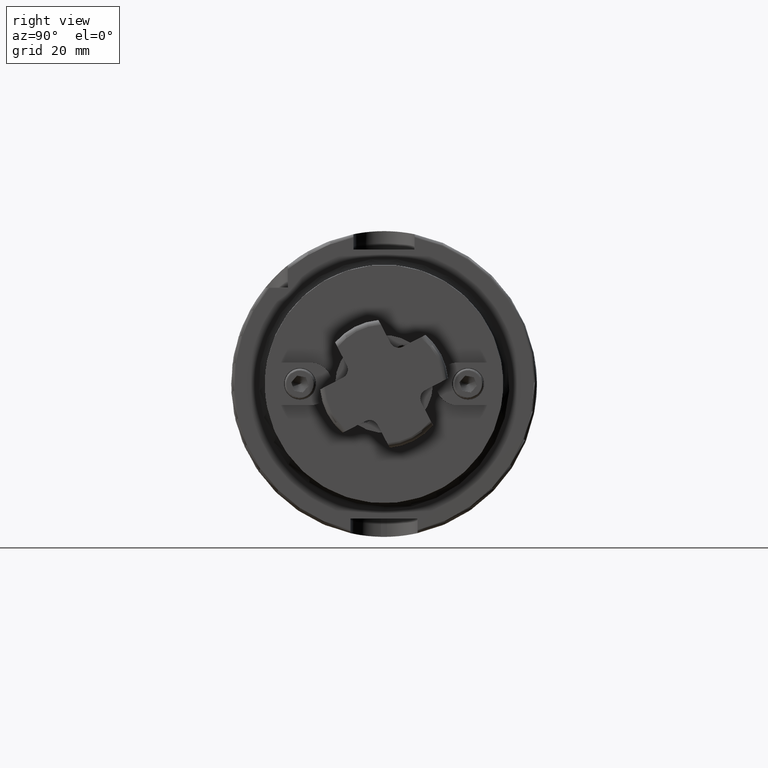
[diagram: clean part render]
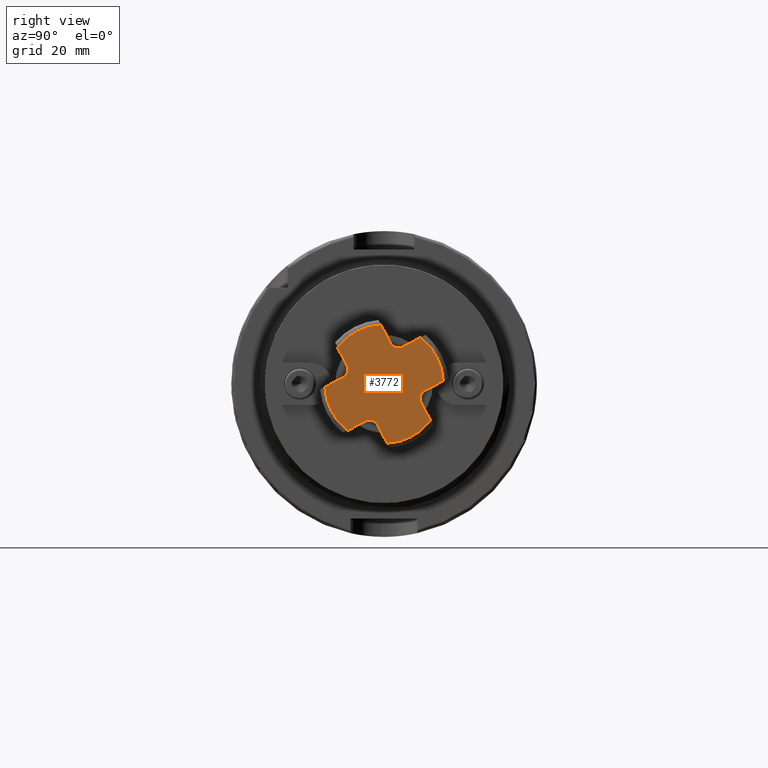
[diagram: same view with one face highlighted and labeled with its STEP entity id]
A machine part, right view. The second image highlights one B-rep face of the part: STEP entity #3772.
In plain terms, the highlighted planar face has unit normal (1, -0, 0).
Its self-contained STEP definition (entity closure, byte-faithful):
#786=PLANE('',#4361);
#1026=FACE_OUTER_BOUND('',#1232,.T.);
#1232=EDGE_LOOP('',(#3551,#3552,#3553,#3554,#3555,#3556,#3557,#3558,#3559,
#3560,#3561,#3562,#3563,#3564,#3565,#3566));
#1395=LINE('',#7669,#1587);
#1400=LINE('',#7708,#1592);
#1405=LINE('',#7747,#1597);
#1410=LINE('',#7786,#1602);
#1418=LINE('',#7810,#1610);
#1420=LINE('',#7816,#1612);
#1422=LINE('',#7822,#1614);
#1424=LINE('',#7828,#1616);
#1587=VECTOR('',#5345,10.);
#1592=VECTOR('',#5362,10.);
#1597=VECTOR('',#5379,10.);
#1602=VECTOR('',#5396,10.);
#1610=VECTOR('',#5422,10.);
#1612=VECTOR('',#5430,10.);
#1614=VECTOR('',#5438,10.);
#1616=VECTOR('',#5446,10.);
#1813=CIRCLE('',#4318,19.4);
#1816=CIRCLE('',#4324,19.4);
#1819=CIRCLE('',#4330,19.4);
#1822=CIRCLE('',#4336,19.4);
#1831=CIRCLE('',#4351,3.);
#1832=CIRCLE('',#4354,3.);
#1833=CIRCLE('',#4357,3.);
#1834=CIRCLE('',#4360,3.);
#2114=VERTEX_POINT('',#7636);
#2115=VERTEX_POINT('',#7647);
#2119=VERTEX_POINT('',#7668);
#2122=VERTEX_POINT('',#7675);
#2123=VERTEX_POINT('',#7686);
#2127=VERTEX_POINT('',#7707);
#2130=VERTEX_POINT('',#7714);
#2131=VERTEX_POINT('',#7725);
#2135=VERTEX_POINT('',#7746);
#2138=VERTEX_POINT('',#7753);
#2139=VERTEX_POINT('',#7764);
#2143=VERTEX_POINT('',#7785);
#2150=VERTEX_POINT('',#7808);
#2151=VERTEX_POINT('',#7814);
#2152=VERTEX_POINT('',#7820);
#2153=VERTEX_POINT('',#7826);
#2564=EDGE_CURVE('',#2114,#2115,#1813,.T.);
#2570=EDGE_CURVE('',#2119,#2115,#1395,.T.);
#2574=EDGE_CURVE('',#2122,#2123,#1816,.T.);
#2580=EDGE_CURVE('',#2127,#2123,#1400,.T.);
#2584=EDGE_CURVE('',#2130,#2131,#1819,.T.);
#2590=EDGE_CURVE('',#2135,#2131,#1405,.T.);
#2594=EDGE_CURVE('',#2138,#2139,#1822,.T.);
#2600=EDGE_CURVE('',#2143,#2139,#1410,.T.);
#2614=EDGE_CURVE('',#2114,#2150,#1418,.T.);
#2615=EDGE_CURVE('',#2150,#2127,#1831,.T.);
#2617=EDGE_CURVE('',#2122,#2151,#1420,.T.);
#2618=EDGE_CURVE('',#2151,#2135,#1832,.T.);
#2620=EDGE_CURVE('',#2130,#2152,#1422,.T.);
#2621=EDGE_CURVE('',#2152,#2143,#1833,.T.);
#2623=EDGE_CURVE('',#2138,#2153,#1424,.T.);
#2624=EDGE_CURVE('',#2153,#2119,#1834,.T.);
#3551=ORIENTED_EDGE('',*,*,#2564,.F.);
#3552=ORIENTED_EDGE('',*,*,#2614,.T.);
#3553=ORIENTED_EDGE('',*,*,#2615,.T.);
#3554=ORIENTED_EDGE('',*,*,#2580,.T.);
#3555=ORIENTED_EDGE('',*,*,#2574,.F.);
#3556=ORIENTED_EDGE('',*,*,#2617,.T.);
#3557=ORIENTED_EDGE('',*,*,#2618,.T.);
#3558=ORIENTED_EDGE('',*,*,#2590,.T.);
#3559=ORIENTED_EDGE('',*,*,#2584,.F.);
#3560=ORIENTED_EDGE('',*,*,#2620,.T.);
#3561=ORIENTED_EDGE('',*,*,#2621,.T.);
#3562=ORIENTED_EDGE('',*,*,#2600,.T.);
#3563=ORIENTED_EDGE('',*,*,#2594,.F.);
#3564=ORIENTED_EDGE('',*,*,#2623,.T.);
#3565=ORIENTED_EDGE('',*,*,#2624,.T.);
#3566=ORIENTED_EDGE('',*,*,#2570,.T.);
#3772=ADVANCED_FACE('',(#1026),#786,.T.);
#4318=AXIS2_PLACEMENT_3D('',#7648,#5333,#5334);
#4324=AXIS2_PLACEMENT_3D('',#7687,#5350,#5351);
#4330=AXIS2_PLACEMENT_3D('',#7726,#5367,#5368);
#4336=AXIS2_PLACEMENT_3D('',#7765,#5384,#5385);
#4351=AXIS2_PLACEMENT_3D('',#7812,#5425,#5426);
#4354=AXIS2_PLACEMENT_3D('',#7818,#5433,#5434);
#4357=AXIS2_PLACEMENT_3D('',#7824,#5441,#5442);
#4360=AXIS2_PLACEMENT_3D('',#7830,#5449,#5450);
#4361=AXIS2_PLACEMENT_3D('',#7831,#5451,#5452);
#5333=DIRECTION('center_axis',(0.,0.,-1.));
#5334=DIRECTION('ref_axis',(-1.,-1.05735526154777E-16,0.));
#5345=DIRECTION('',(-1.,-2.63820977554927E-16,0.));
#5350=DIRECTION('center_axis',(0.,0.,-1.));
#5351=DIRECTION('ref_axis',(5.28677630773884E-17,-1.,0.));
#5362=DIRECTION('',(1.31910488777464E-16,-1.,0.));
#5367=DIRECTION('center_axis',(0.,0.,-1.));
#5368=DIRECTION('ref_axis',(1.,-1.05735526154777E-16,0.));
#5379=DIRECTION('',(1.,-1.31910488777464E-16,0.));
#5384=DIRECTION('center_axis',(0.,0.,-1.));
#5385=DIRECTION('ref_axis',(0.,1.,0.));
#5396=DIRECTION('',(2.63820977554927E-16,1.,0.));
#5422=DIRECTION('',(1.,1.31910488777464E-16,0.));
#5425=DIRECTION('center_axis',(0.,0.,-1.));
#5426=DIRECTION('ref_axis',(-1.,0.,0.));
#5430=DIRECTION('',(1.31910488777464E-16,1.,0.));
#5433=DIRECTION('center_axis',(0.,0.,-1.));
#5434=DIRECTION('ref_axis',(0.,-1.,0.));
#5438=DIRECTION('',(-1.,2.63820977554927E-16,0.));
#5441=DIRECTION('center_axis',(0.,0.,-1.));
#5442=DIRECTION('ref_axis',(1.,0.,0.));
#5446=DIRECTION('',(2.63820977554927E-16,-1.,0.));
#5449=DIRECTION('center_axis',(0.,0.,-1.));
#5450=DIRECTION('ref_axis',(0.,1.,0.));
#5451=DIRECTION('center_axis',(0.,0.,1.));
#5452=DIRECTION('ref_axis',(1.,0.,0.));
#7636=CARTESIAN_POINT('',(-17.6737092880923,-8.,0.));
#7647=CARTESIAN_POINT('',(-17.6737092880923,8.,0.));
#7648=CARTESIAN_POINT('Origin',(0.,0.,0.));
#7668=CARTESIAN_POINT('',(-11.,8.,0.));
#7669=CARTESIAN_POINT('',(-11.,8.,0.));
#7675=CARTESIAN_POINT('',(8.,-17.6737092880923,0.));
#7686=CARTESIAN_POINT('',(-8.,-17.6737092880923,0.));
#7687=CARTESIAN_POINT('Origin',(0.,0.,0.));
#7707=CARTESIAN_POINT('',(-8.,-11.,0.));
#7708=CARTESIAN_POINT('',(-8.,-11.,0.));
#7714=CARTESIAN_POINT('',(17.6737092880923,8.,0.));
#7725=CARTESIAN_POINT('',(17.6737092880923,-8.,0.));
#7726=CARTESIAN_POINT('Origin',(0.,0.,0.));
#7746=CARTESIAN_POINT('',(11.,-8.,0.));
#7747=CARTESIAN_POINT('',(11.,-8.,0.));
#7753=CARTESIAN_POINT('',(-8.,17.6737092880923,0.));
#7764=CARTESIAN_POINT('',(8.,17.6737092880923,0.));
#7765=CARTESIAN_POINT('Origin',(0.,0.,0.));
#7785=CARTESIAN_POINT('',(8.,11.,0.));
#7786=CARTESIAN_POINT('',(8.,11.,0.));
#7808=CARTESIAN_POINT('',(-11.,-8.,0.));
#7810=CARTESIAN_POINT('',(-19.4164878389476,-8.,0.));
#7812=CARTESIAN_POINT('Origin',(-11.,-11.,0.));
#7814=CARTESIAN_POINT('',(8.,-11.,0.));
#7816=CARTESIAN_POINT('',(8.,-19.4164878389476,0.));
#7818=CARTESIAN_POINT('Origin',(11.,-11.,0.));
#7820=CARTESIAN_POINT('',(11.,8.,0.));
#7822=CARTESIAN_POINT('',(19.4164878389476,8.,0.));
#7824=CARTESIAN_POINT('Origin',(11.,11.,0.));
#7826=CARTESIAN_POINT('',(-8.,11.,0.));
#7828=CARTESIAN_POINT('',(-8.,19.4164878389476,0.));
#7830=CARTESIAN_POINT('Origin',(-11.,11.,0.));
#7831=CARTESIAN_POINT('Origin',(0.,0.,0.));